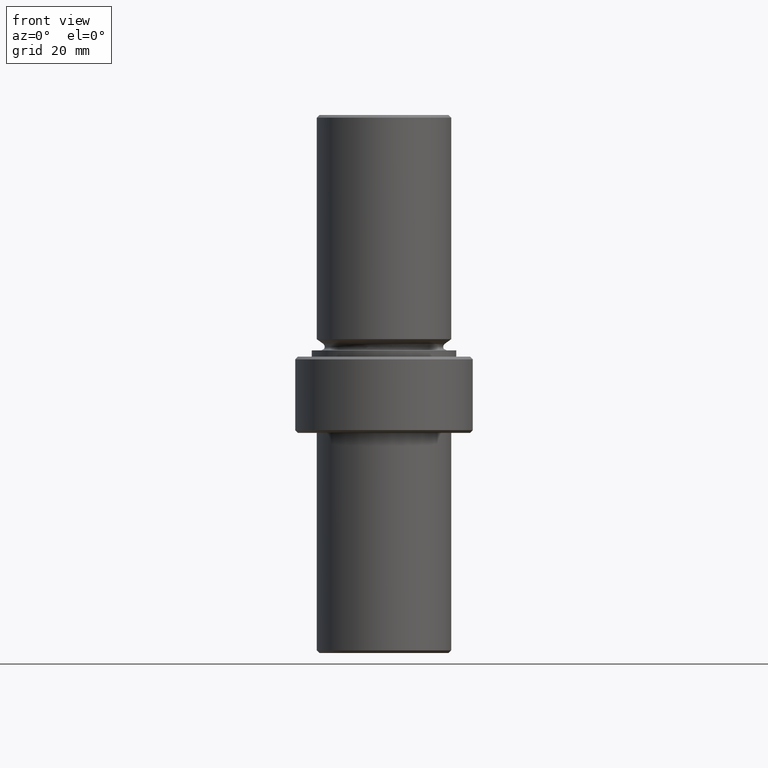
[diagram: clean part render]
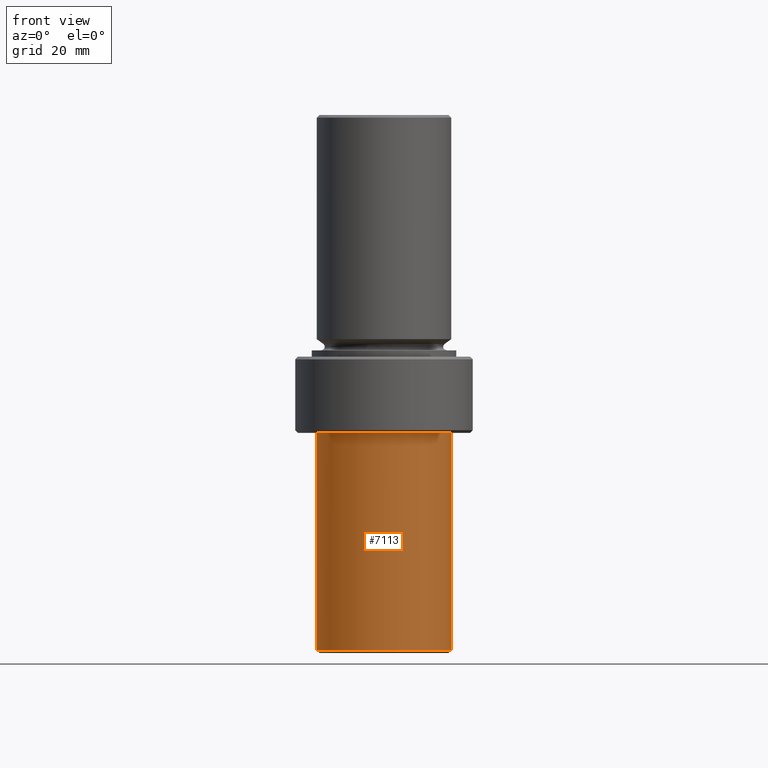
[diagram: same view with one face highlighted and labeled with its STEP entity id]
A machine part, front view. The second image highlights one B-rep face of the part: STEP entity #7113.
In plain terms, the highlighted cylindrical surface (bore or boss wall) has radius 19.05 mm, axis along (0, 0, 1).
Its self-contained STEP definition (entity closure, byte-faithful):
#7086=CARTESIAN_POINT('',(-2.664535E-015,0.0,1.689000000000000));
#7087=DIRECTION('',(0.0,0.0,-1.0));
#7088=DIRECTION('',(1.0,0.0,0.0));
#7089=AXIS2_PLACEMENT_3D('',#7086,#7087,#7088);
#7090=CYLINDRICAL_SURFACE('',#7089,0.750000000000000);
#7091=CARTESIAN_POINT('',(-0.750000000000003,0.0,2.909000000000000));
#7092=VERTEX_POINT('',#7091);
#7093=CARTESIAN_POINT('',(-2.664535E-015,0.0,2.909000000000000));
#7094=DIRECTION('',(0.0,0.0,1.0));
#7095=DIRECTION('',(-1.0,0.0,0.0));
#7096=AXIS2_PLACEMENT_3D('',#7093,#7094,#7095);
#7097=CIRCLE('',#7096,0.750000000000000);
#7098=EDGE_CURVE('',#7092,#7092,#7097,.T.);
#7099=ORIENTED_EDGE('',*,*,#7098,.F.);
#7100=EDGE_LOOP('',(#7099));
#7101=FACE_OUTER_BOUND('',#7100,.T.);
#7102=CARTESIAN_POINT('',(-0.750000000000003,9.184548E-017,0.439000000000002));
#7103=VERTEX_POINT('',#7102);
#7104=CARTESIAN_POINT('',(-2.664535E-015,0.0,0.439000000000002));
#7105=DIRECTION('',(0.0,0.0,-1.0));
#7106=DIRECTION('',(1.0,0.0,0.0));
#7107=AXIS2_PLACEMENT_3D('',#7104,#7105,#7106);
#7108=CIRCLE('',#7107,0.750000000000000);
#7109=EDGE_CURVE('',#7103,#7103,#7108,.T.);
#7110=ORIENTED_EDGE('',*,*,#7109,.F.);
#7111=EDGE_LOOP('',(#7110));
#7112=FACE_BOUND('',#7111,.T.);
#7113=ADVANCED_FACE('',(#7101,#7112),#7090,.T.);